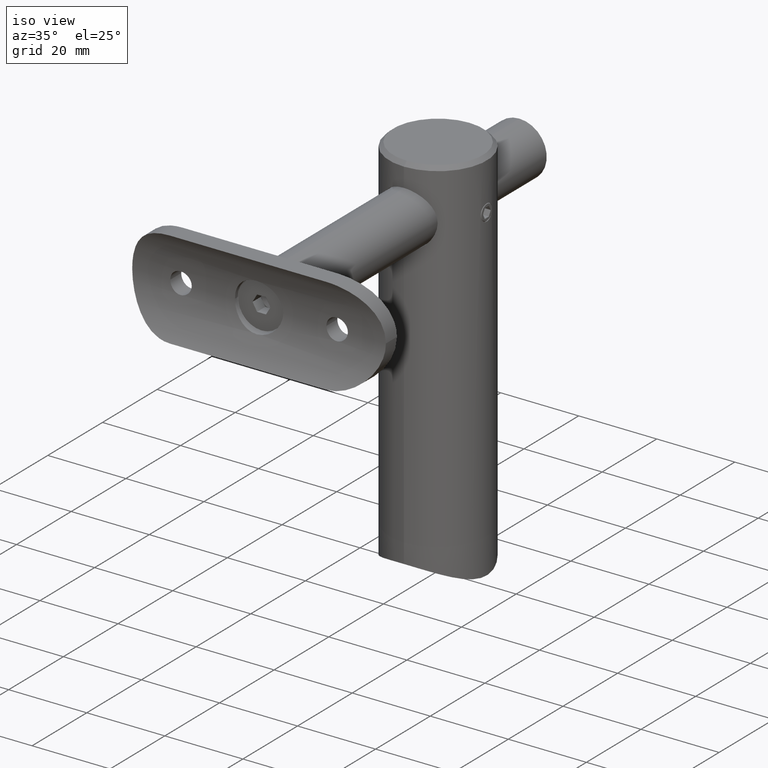
[diagram: clean part render]
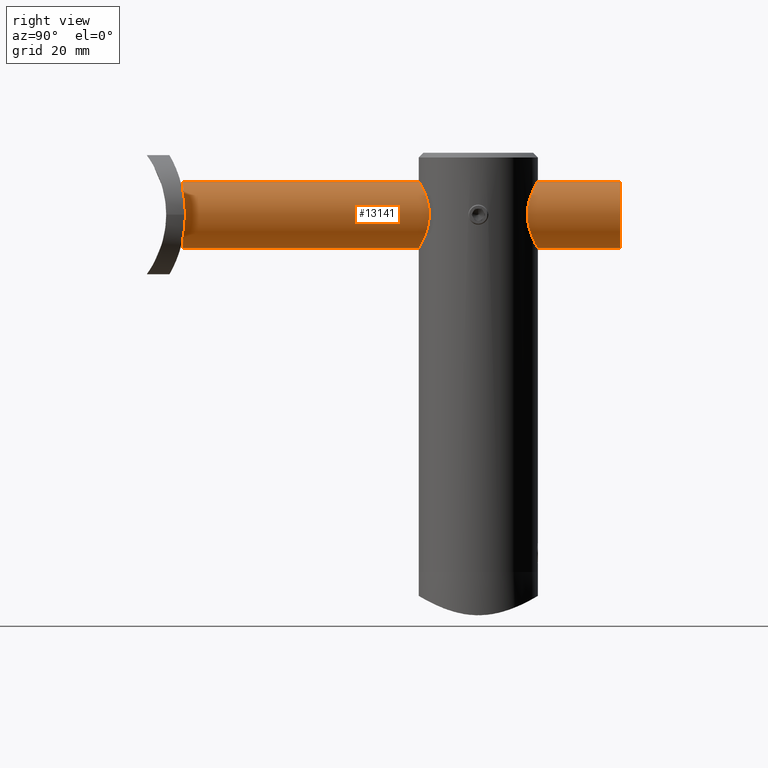
[diagram: tour spotlight — one face highlighted and labeled with its STEP entity id]
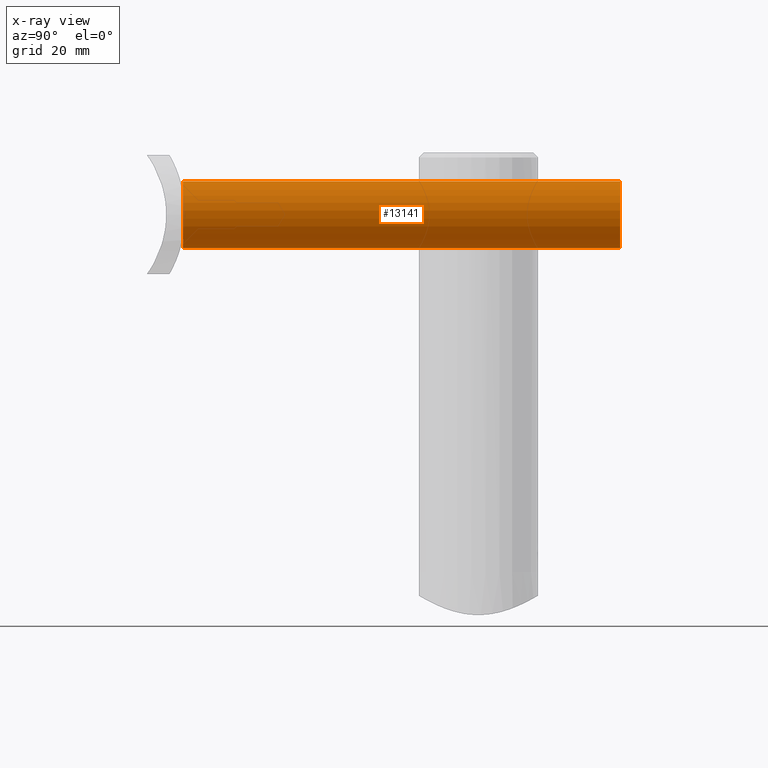
[diagram: x-ray of the same camera — body ghosted, this tour face saturated]
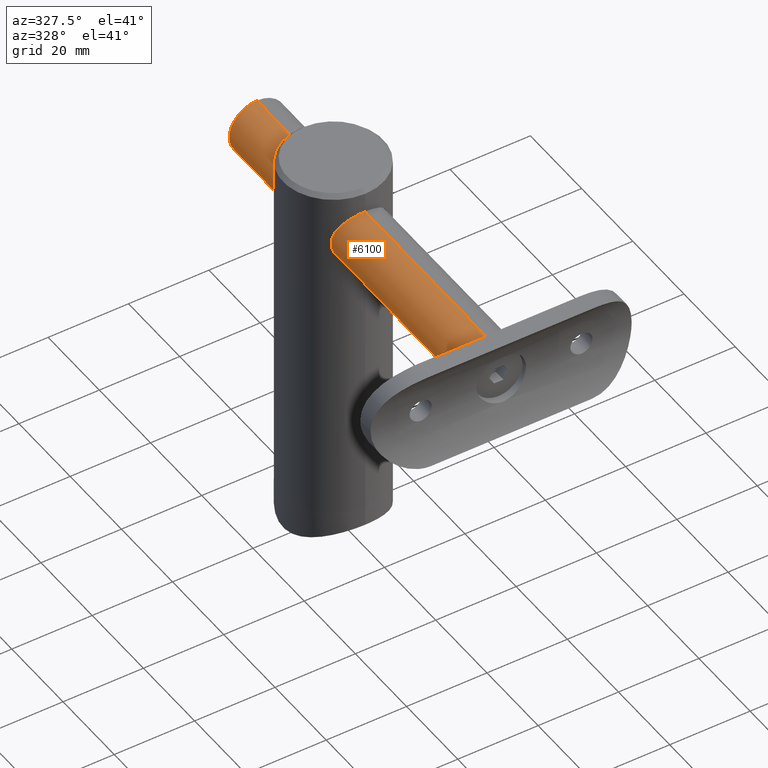
[diagram: tour spotlight — one face highlighted and labeled with its STEP entity id]
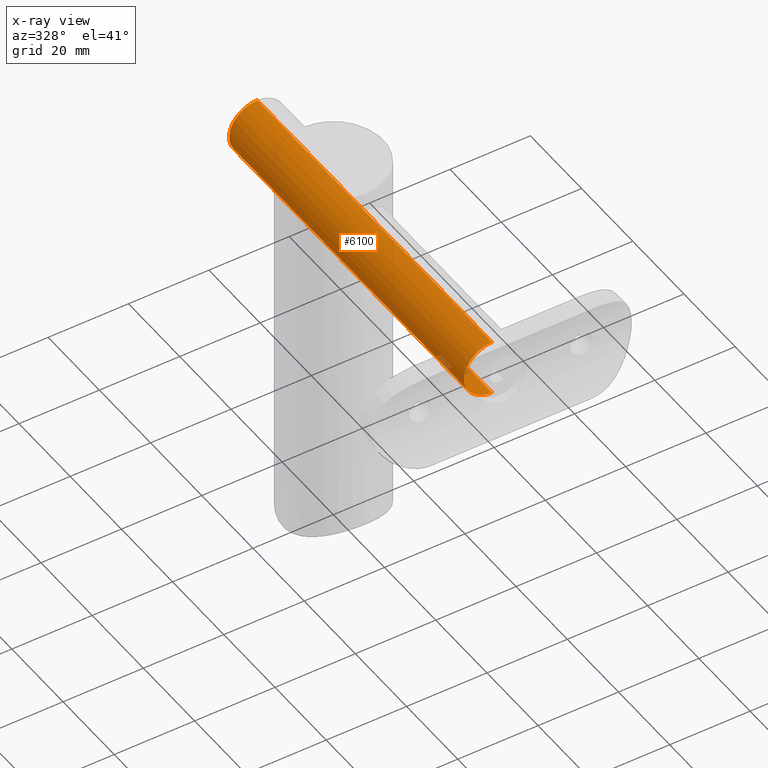
[diagram: x-ray of the same camera — body ghosted, this tour face saturated]
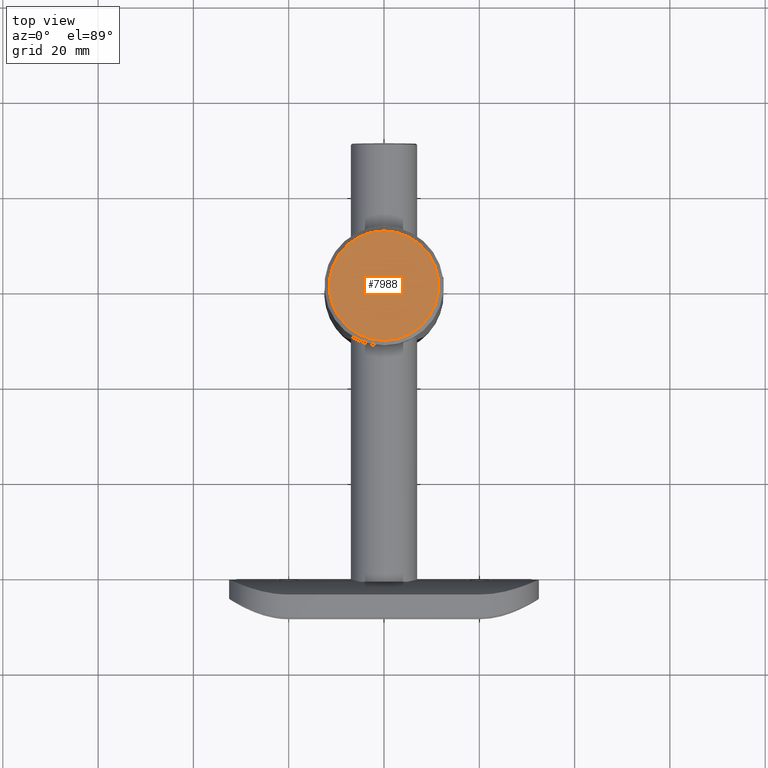
[diagram: tour spotlight — one face highlighted and labeled with its STEP entity id]
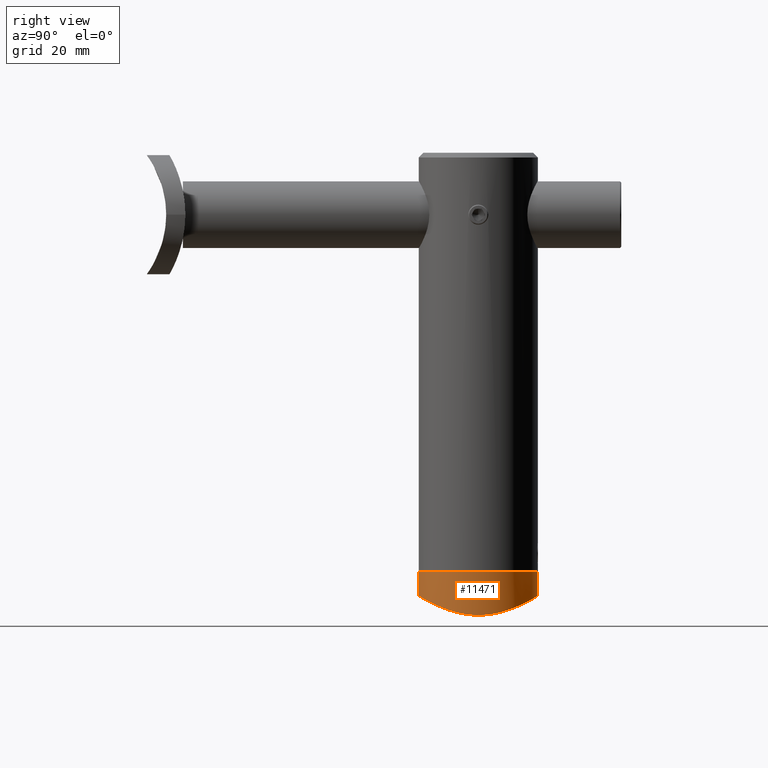
[diagram: tour spotlight — one face highlighted and labeled with its STEP entity id]
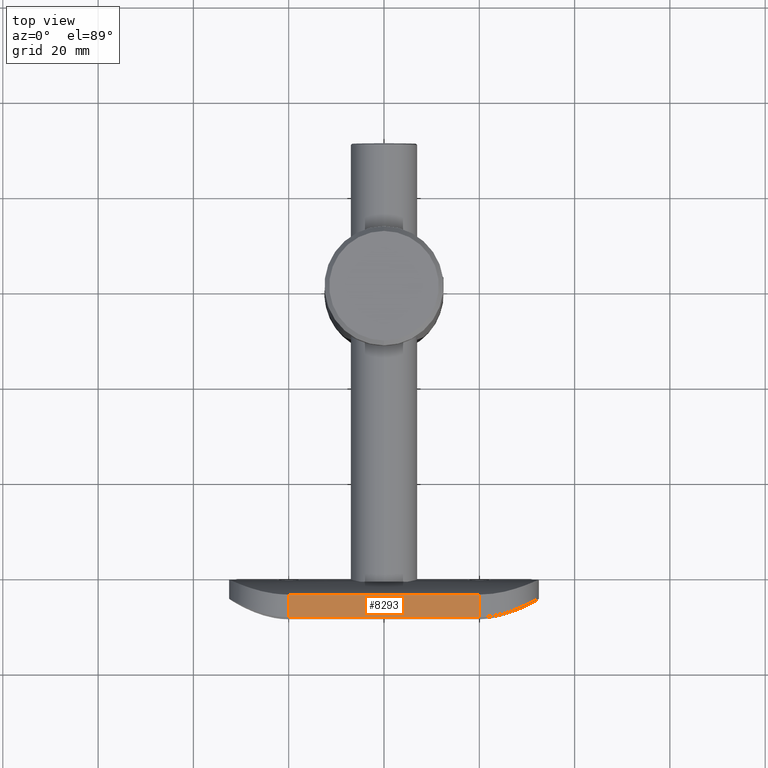
[diagram: tour spotlight — one face highlighted and labeled with its STEP entity id]
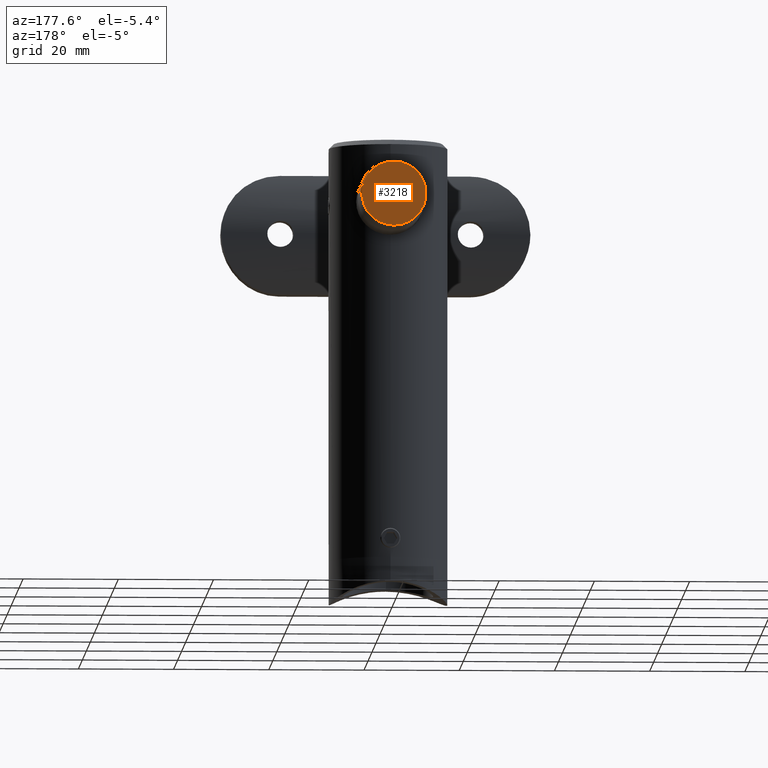
[diagram: tour spotlight — one face highlighted and labeled with its STEP entity id]
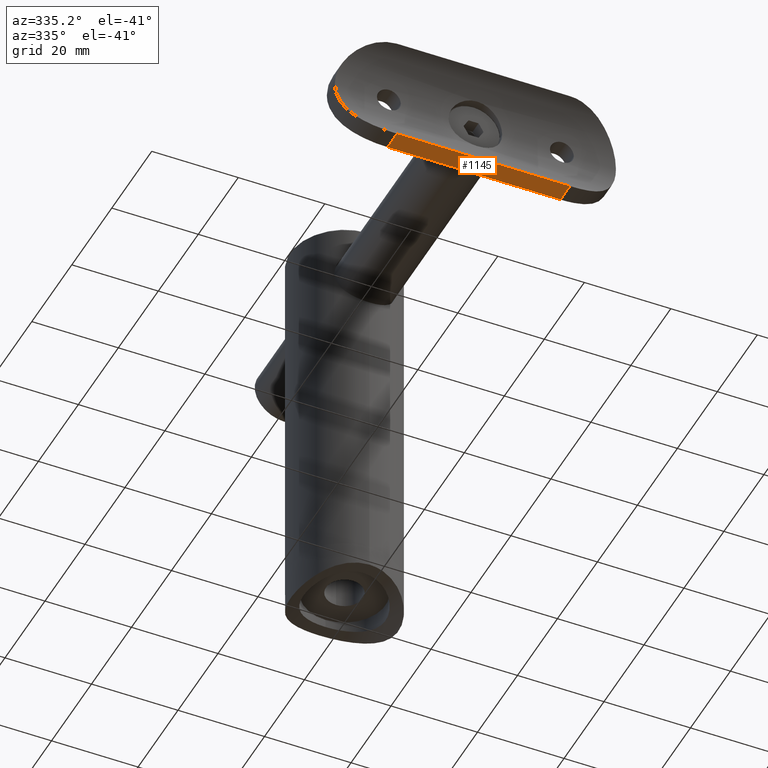
[diagram: tour spotlight — one face highlighted and labeled with its STEP entity id]
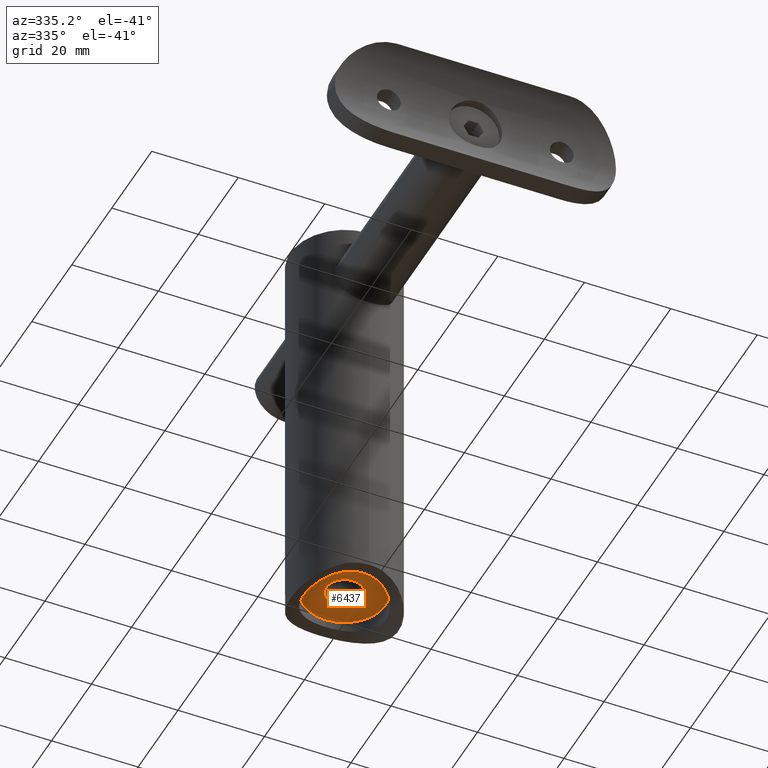
[diagram: tour spotlight — one face highlighted and labeled with its STEP entity id]
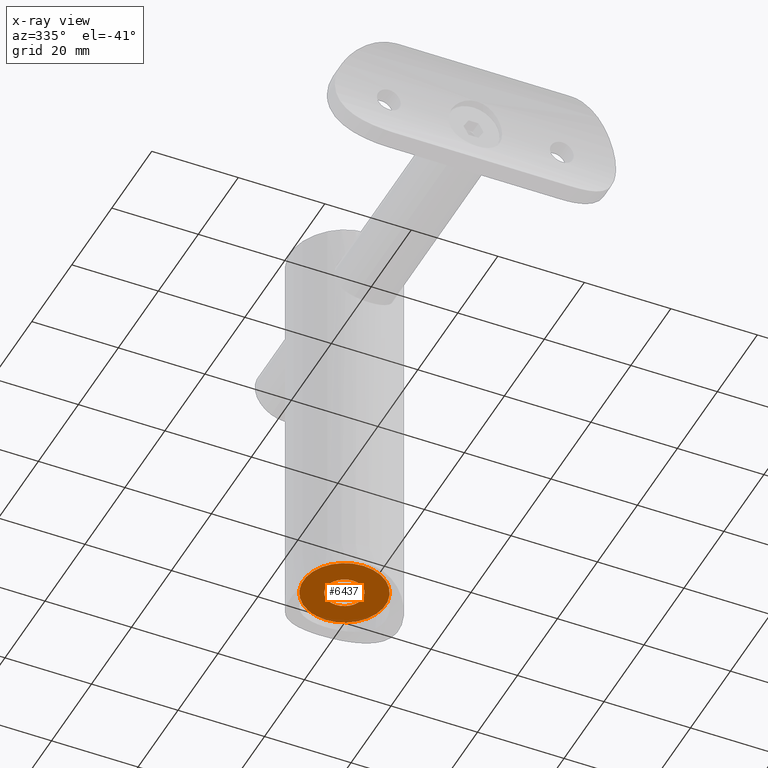
[diagram: x-ray of the same camera — body ghosted, this tour face saturated]
A machine part: a face-by-face anatomy tour. The part has 353 B-rep faces; the first image is the clean iso view, then the 8 largest visible faces are spotlighted one at a time (largest first), each with its STEP entity span.

Face 1 — right view, entity #13141. An x-ray twin of the same camera follows (body ghosted, this face saturated) — the face is partly hidden behind the body. In plain terms, the highlighted cylindrical surface (edge-blend (fillet) strip) has radius 7 mm, axis along (0, 1, -0).
Definition (entity closure, byte-faithful):
#82 = CIRCLE ( 'NONE', #6623, 7.000000000000000000 ) ;
#671 = CARTESIAN_POINT ( 'NONE',  ( 0.000000000000000000, 92.00000000000000000, 0.000000000000000000 ) ) ;
#829 = LINE ( 'NONE', #16561, #9167 ) ;
#936 = DIRECTION ( 'NONE',  ( -0.000000000000000000, -1.000000000000000000, -0.000000000000000000 ) ) ;
#2374 = CARTESIAN_POINT ( 'NONE',  ( 8.572527594031473190E-16, 92.00000000000000000, 7.000000000000000000 ) ) ;
#2653 = DIRECTION ( 'NONE',  ( -0.000000000000000000, -1.000000000000000000, -0.000000000000000000 ) ) ;
#3145 = CARTESIAN_POINT ( 'NONE',  ( 0.000000000000000000, 0.2499999999999863443, 0.000000000000000000 ) ) ;
#4127 = VECTOR ( 'NONE', #2653, 1000.000000000000000 ) ;
#4456 = AXIS2_PLACEMENT_3D ( 'NONE', #3145, #11072, #9676 ) ;
#4827 = CARTESIAN_POINT ( 'NONE',  ( 8.572527594031473190E-16, 92.00000000000000000, 7.000000000000000000 ) ) ;
#5632 = DIRECTION ( 'NONE',  ( 0.000000000000000000, 0.000000000000000000, 1.000000000000000000 ) ) ;
#5797 = VERTEX_POINT ( 'NONE', #13452 ) ;
#6597 = VERTEX_POINT ( 'NONE', #19011 ) ;
#6623 = AXIS2_PLACEMENT_3D ( 'NONE', #10310, #11914, #5632 ) ;
#7384 = LINE ( 'NONE', #2374, #4127 ) ;
#7604 = ORIENTED_EDGE ( 'NONE', *, *, #14536, .F. ) ;
#8210 = EDGE_LOOP ( 'NONE', ( #9320, #7604, #8816, #13949 ) ) ;
#8816 = ORIENTED_EDGE ( 'NONE', *, *, #13753, .T. ) ;
#8990 = CARTESIAN_POINT ( 'NONE',  ( 8.572527594031473190E-16, 0.2499999999999863443, 7.000000000000000000 ) ) ;
#8991 = EDGE_CURVE ( 'NONE', #5797, #12577, #13229, .T. ) ;
#9167 = VECTOR ( 'NONE', #20252, 1000.000000000000000 ) ;
#9320 = ORIENTED_EDGE ( 'NONE', *, *, #15158, .F. ) ;
#9676 = DIRECTION ( 'NONE',  ( 0.000000000000000000, 0.000000000000000000, 1.000000000000000000 ) ) ;
#10310 = CARTESIAN_POINT ( 'NONE',  ( 0.000000000000000000, 92.00000000000000000, 0.000000000000000000 ) ) ;
#11072 = DIRECTION ( 'NONE',  ( -0.000000000000000000, 1.000000000000000000, -0.000000000000000000 ) ) ;
#11914 = DIRECTION ( 'NONE',  ( 0.000000000000000000, 1.000000000000000000, 0.000000000000000000 ) ) ;
#11931 = FACE_OUTER_BOUND ( 'NONE', #8210, .T. ) ;
#12409 = AXIS2_PLACEMENT_3D ( 'NONE', #671, #936, #13262 ) ;
#12577 = VERTEX_POINT ( 'NONE', #8990 ) ;
#13141 = ADVANCED_FACE ( 'NONE', ( #11931 ), #14868, .T. ) ;
#13229 = CIRCLE ( 'NONE', #4456, 7.000000000000000000 ) ;
#13262 = DIRECTION ( 'NONE',  ( 0.000000000000000000, 0.000000000000000000, -1.000000000000000000 ) ) ;
#13452 = CARTESIAN_POINT ( 'NONE',  ( 0.000000000000000000, 0.2499999999999863443, -7.000000000000000000 ) ) ;
#13542 = VERTEX_POINT ( 'NONE', #4827 ) ;
#13753 = EDGE_CURVE ( 'NONE', #6597, #5797, #829, .T. ) ;
#13949 = ORIENTED_EDGE ( 'NONE', *, *, #8991, .T. ) ;
#14536 = EDGE_CURVE ( 'NONE', #6597, #13542, #82, .T. ) ;
#14868 = CYLINDRICAL_SURFACE ( 'NONE', #12409, 7.000000000000000000 ) ;
#15158 = EDGE_CURVE ( 'NONE', #13542, #12577, #7384, .T. ) ;
#16561 = CARTESIAN_POINT ( 'NONE',  ( 0.000000000000000000, 92.00000000000000000, -7.000000000000000000 ) ) ;
#19011 = CARTESIAN_POINT ( 'NONE',  ( 0.000000000000000000, 92.00000000000000000, -7.000000000000000000 ) ) ;
#20252 = DIRECTION ( 'NONE',  ( -0.000000000000000000, -1.000000000000000000, -0.000000000000000000 ) ) ;

Face 2 — auxiliary view, entity #6100. An x-ray twin of the same camera follows (body ghosted, this face saturated) — the face is partly hidden behind the body. In plain terms, the highlighted cylindrical surface (edge-blend (fillet) strip) has radius 7 mm, axis along (0, 1, -0).
Definition (entity closure, byte-faithful):
#829 = LINE ( 'NONE', #16561, #9167 ) ;
#1259 = DIRECTION ( 'NONE',  ( 0.000000000000000000, 0.000000000000000000, 1.000000000000000000 ) ) ;
#2138 = AXIS2_PLACEMENT_3D ( 'NONE', #10083, #19738, #8573 ) ;
#2374 = CARTESIAN_POINT ( 'NONE',  ( 8.572527594031473190E-16, 92.00000000000000000, 7.000000000000000000 ) ) ;
#2653 = DIRECTION ( 'NONE',  ( -0.000000000000000000, -1.000000000000000000, -0.000000000000000000 ) ) ;
#3030 = CIRCLE ( 'NONE', #2138, 7.000000000000000000 ) ;
#3034 = DIRECTION ( 'NONE',  ( -0.000000000000000000, 1.000000000000000000, -0.000000000000000000 ) ) ;
#3058 = CARTESIAN_POINT ( 'NONE',  ( 0.000000000000000000, 92.00000000000000000, 0.000000000000000000 ) ) ;
#3549 = AXIS2_PLACEMENT_3D ( 'NONE', #3058, #10777, #6040 ) ;
#4127 = VECTOR ( 'NONE', #2653, 1000.000000000000000 ) ;
#4827 = CARTESIAN_POINT ( 'NONE',  ( 8.572527594031473190E-16, 92.00000000000000000, 7.000000000000000000 ) ) ;
#4885 = CYLINDRICAL_SURFACE ( 'NONE', #3549, 7.000000000000000000 ) ;
#5797 = VERTEX_POINT ( 'NONE', #13452 ) ;
#6040 = DIRECTION ( 'NONE',  ( 0.000000000000000000, 0.000000000000000000, -1.000000000000000000 ) ) ;
#6100 = ADVANCED_FACE ( 'NONE', ( #6388 ), #4885, .T. ) ;
#6388 = FACE_OUTER_BOUND ( 'NONE', #9998, .T. ) ;
#6597 = VERTEX_POINT ( 'NONE', #19011 ) ;
#6772 = ORIENTED_EDGE ( 'NONE', *, *, #13753, .F. ) ;
#7384 = LINE ( 'NONE', #2374, #4127 ) ;
#8353 = EDGE_CURVE ( 'NONE', #12577, #5797, #13486, .T. ) ;
#8573 = DIRECTION ( 'NONE',  ( 0.000000000000000000, 0.000000000000000000, 1.000000000000000000 ) ) ;
#8990 = CARTESIAN_POINT ( 'NONE',  ( 8.572527594031473190E-16, 0.2499999999999863443, 7.000000000000000000 ) ) ;
#9167 = VECTOR ( 'NONE', #20252, 1000.000000000000000 ) ;
#9998 = EDGE_LOOP ( 'NONE', ( #13849, #12960, #11717, #6772 ) ) ;
#10083 = CARTESIAN_POINT ( 'NONE',  ( 0.000000000000000000, 92.00000000000000000, 0.000000000000000000 ) ) ;
#10777 = DIRECTION ( 'NONE',  ( -0.000000000000000000, -1.000000000000000000, -0.000000000000000000 ) ) ;
#11717 = ORIENTED_EDGE ( 'NONE', *, *, #8353, .T. ) ;
#12267 = AXIS2_PLACEMENT_3D ( 'NONE', #12490, #3034, #1259 ) ;
#12490 = CARTESIAN_POINT ( 'NONE',  ( 0.000000000000000000, 0.2499999999999863443, 0.000000000000000000 ) ) ;
#12577 = VERTEX_POINT ( 'NONE', #8990 ) ;
#12960 = ORIENTED_EDGE ( 'NONE', *, *, #15158, .T. ) ;
#13112 = EDGE_CURVE ( 'NONE', #13542, #6597, #3030, .T. ) ;
#13452 = CARTESIAN_POINT ( 'NONE',  ( 0.000000000000000000, 0.2499999999999863443, -7.000000000000000000 ) ) ;
#13486 = CIRCLE ( 'NONE', #12267, 7.000000000000000000 ) ;
#13542 = VERTEX_POINT ( 'NONE', #4827 ) ;
#13753 = EDGE_CURVE ( 'NONE', #6597, #5797, #829, .T. ) ;
#13849 = ORIENTED_EDGE ( 'NONE', *, *, #13112, .F. ) ;
#15158 = EDGE_CURVE ( 'NONE', #13542, #12577, #7384, .T. ) ;
#16561 = CARTESIAN_POINT ( 'NONE',  ( 0.000000000000000000, 92.00000000000000000, -7.000000000000000000 ) ) ;
#19011 = CARTESIAN_POINT ( 'NONE',  ( 0.000000000000000000, 92.00000000000000000, -7.000000000000000000 ) ) ;
#19738 = DIRECTION ( 'NONE',  ( 0.000000000000000000, 1.000000000000000000, 0.000000000000000000 ) ) ;
#20252 = DIRECTION ( 'NONE',  ( -0.000000000000000000, -1.000000000000000000, -0.000000000000000000 ) ) ;

Face 3 — top view, entity #7988. In plain terms, the highlighted planar face has unit normal (0, -0, 1).
Definition (entity closure, byte-faithful):
#1313 = CARTESIAN_POINT ( 'NONE',  ( 1.469576158976824736E-15, -11.50000000000001599, 88.00000000000000000 ) ) ;
#1762 = CIRCLE ( 'NONE', #12082, 11.50000000000000888 ) ;
#2329 = DIRECTION ( 'NONE',  ( 0.000000000000000000, -1.098045870766271941E-16, 1.000000000000000000 ) ) ;
#2393 = DIRECTION ( 'NONE',  ( 0.000000000000000000, -1.000000000000000000, 0.000000000000000000 ) ) ;
#3147 = AXIS2_PLACEMENT_3D ( 'NONE', #5127, #12920, #17742 ) ;
#3306 = CIRCLE ( 'NONE', #8462, 11.50000000000000888 ) ;
#3522 = EDGE_CURVE ( 'NONE', #19566, #4976, #1762, .T. ) ;
#4779 = EDGE_LOOP ( 'NONE', ( #17132, #12656 ) ) ;
#4976 = VERTEX_POINT ( 'NONE', #18847 ) ;
#5127 = CARTESIAN_POINT ( 'NONE',  ( 0.000000000000000000, -6.938893903907228378E-15, 88.00000000000000000 ) ) ;
#7988 = ADVANCED_FACE ( 'NONE', ( #9789 ), #9801, .T. ) ;
#8462 = AXIS2_PLACEMENT_3D ( 'NONE', #13222, #2329, #2393 ) ;
#9523 = DIRECTION ( 'NONE',  ( 0.000000000000000000, -1.098045870766271941E-16, 1.000000000000000000 ) ) ;
#9789 = FACE_OUTER_BOUND ( 'NONE', #4779, .T. ) ;
#9801 = PLANE ( 'NONE',  #3147 ) ;
#12082 = AXIS2_PLACEMENT_3D ( 'NONE', #17396, #9523, #19391 ) ;
#12426 = EDGE_CURVE ( 'NONE', #4976, #19566, #3306, .T. ) ;
#12656 = ORIENTED_EDGE ( 'NONE', *, *, #3522, .T. ) ;
#12920 = DIRECTION ( 'NONE',  ( 0.000000000000000000, -1.098045870766271941E-16, 1.000000000000000000 ) ) ;
#13222 = CARTESIAN_POINT ( 'NONE',  ( 0.000000000000000000, -6.938893903907228378E-15, 88.00000000000000000 ) ) ;
#17132 = ORIENTED_EDGE ( 'NONE', *, *, #12426, .T. ) ;
#17396 = CARTESIAN_POINT ( 'NONE',  ( 0.000000000000000000, -6.938893903907228378E-15, 88.00000000000000000 ) ) ;
#17742 = DIRECTION ( 'NONE',  ( 0.000000000000000000, -1.000000000000000000, -1.098045870766271941E-16 ) ) ;
#18847 = CARTESIAN_POINT ( 'NONE',  ( 0.000000000000000000, 11.50000000000000178, 88.00000000000000000 ) ) ;
#19391 = DIRECTION ( 'NONE',  ( 0.000000000000000000, -1.000000000000000000, 0.000000000000000000 ) ) ;
#19566 = VERTEX_POINT ( 'NONE', #1313 ) ;

Face 4 — right view, entity #11471. In plain terms, the highlighted cylindrical surface (partial cylindrical patch) has radius 12.5 mm, axis along (0, 0, -1).
Definition (entity closure, byte-faithful):
#20 = CARTESIAN_POINT ( 'NONE',  ( 12.49952788043968255, 0.4368485482069777714, -4.076863514619261331 ) ) ;
#234 = CARTESIAN_POINT ( 'NONE',  ( 11.19951824176104260, 5.610365273027625221, -3.195789650799768289 ) ) ;
#294 = CARTESIAN_POINT ( 'NONE',  ( 4.484770986791653868, 11.67494392594038644, -0.4761762759779024634 ) ) ;
#958 = CIRCLE ( 'NONE', #5767, 12.50000000000000000 ) ;
#1112 = LINE ( 'NONE', #14214, #20343 ) ;
#1286 = ORIENTED_EDGE ( 'NONE', *, *, #11260, .T. ) ;
#1748 = CARTESIAN_POINT ( 'NONE',  ( 0.000000000000000000, 0.000000000000000000, 0.000000000000000000 ) ) ;
#1792 = CARTESIAN_POINT ( 'NONE',  ( 12.05928981790097509, 3.315947863389200112, -3.763379523277600835 ) ) ;
#1858 = CARTESIAN_POINT ( 'NONE',  ( 6.327442067174433582, 10.81070993117193701, -0.9537559661941126254 ) ) ;
#2014 = CARTESIAN_POINT ( 'NONE',  ( 0.000000000000000000, 12.50000000000000000, 5.000000000000000000 ) ) ;
#2064 = VERTEX_POINT ( 'NONE', #8362 ) ;
#2070 = CARTESIAN_POINT ( 'NONE',  ( 1.530808498934191521E-15, -12.50000000000000000, 0.000000000000000000 ) ) ;
#2199 = CARTESIAN_POINT ( 'NONE',  ( 4.105579123586817758, -11.81380058909568476, -0.3974590877189465021 ) ) ;
#2633 = AXIS2_PLACEMENT_3D ( 'NONE', #1748, #15942, #14283 ) ;
#3500 = CARTESIAN_POINT ( 'NONE',  ( 3.314268895872203302, -12.05973822206781776, -0.2568123239795945811 ) ) ;
#3646 = CARTESIAN_POINT ( 'NONE',  ( 10.80857782698150693, -6.291928922265640267, -2.960889035143796644 ) ) ;
#3905 = CARTESIAN_POINT ( 'NONE',  ( 1.530808498934191521E-15, -12.50000000000000000, 0.000000000000000000 ) ) ;
#4663 = CARTESIAN_POINT ( 'NONE',  ( 7.658649217430773426, 9.887116871149988384, -1.428917258316854344 ) ) ;
#4806 = CARTESIAN_POINT ( 'NONE',  ( 8.275085783090288416, 9.377256695960113575, -1.678894091352529871 ) ) ;
#5221 = CARTESIAN_POINT ( 'NONE',  ( 9.926636468171464500, -7.639131853456513355, -2.460587857928715039 ) ) ;
#5294 = CARTESIAN_POINT ( 'NONE',  ( 0.8493063021244323663, -12.47821017736088756, -0.01286860730927485812 ) ) ;
#5767 = AXIS2_PLACEMENT_3D ( 'NONE', #13096, #19438, #10194 ) ;
#6131 = ORIENTED_EDGE ( 'NONE', *, *, #18754, .F. ) ;
#6273 = CARTESIAN_POINT ( 'NONE',  ( 10.81845405890102718, 6.312809980033599722, -2.960938029448109354 ) ) ;
#6407 = CARTESIAN_POINT ( 'NONE',  ( 9.907181247822171244, 7.632686742754889231, -2.455152407378314194 ) ) ;
#6465 = DIRECTION ( 'NONE',  ( -0.000000000000000000, 1.224646799147353207E-16, -1.000000000000000000 ) ) ;
#6614 = CARTESIAN_POINT ( 'NONE',  ( 9.421823641441763542, -8.253338742496664437, -2.198572594055990148 ) ) ;
#6868 = EDGE_CURVE ( 'NONE', #8634, #9893, #958, .T. ) ;
#7006 = ORIENTED_EDGE ( 'NONE', *, *, #16369, .F. ) ;
#7852 = CARTESIAN_POINT ( 'NONE',  ( 12.16283172011047320, 2.913318855141288299, -3.835786719495810182 ) ) ;
#7921 = CARTESIAN_POINT ( 'NONE',  ( 1.677193835120719623, 12.41473863385456333, -0.05058743771265820227 ) ) ;
#8020 = FACE_OUTER_BOUND ( 'NONE', #20336, .T. ) ;
#8114 = CARTESIAN_POINT ( 'NONE',  ( 0.000000000000000000, 12.50000000000000000, 1.530808498934191521E-15 ) ) ;
#8328 = CARTESIAN_POINT ( 'NONE',  ( 11.68253881569350128, -4.464708600178402875, -3.508378586956061973 ) ) ;
#8362 = CARTESIAN_POINT ( 'NONE',  ( 0.000000000000000000, 12.50000000000000000, -5.261240927112904875E-16 ) ) ;
#8634 = VERTEX_POINT ( 'NONE', #2014 ) ;
#9416 = CARTESIAN_POINT ( 'NONE',  ( 12.47743914675955779, 0.8590761027902540370, -4.060680339665353245 ) ) ;
#9449 = DIRECTION ( 'NONE',  ( -0.000000000000000000, 1.224646799147353207E-16, -1.000000000000000000 ) ) ;
#9620 = CARTESIAN_POINT ( 'NONE',  ( 9.131153934576976994, 8.545773481795480464, -2.064755425040019521 ) ) ;
#9760 = CARTESIAN_POINT ( 'NONE',  ( 10.59835307524082815, -6.639730706434157526, -2.837515640770630121 ) ) ;
#9893 = VERTEX_POINT ( 'NONE', #10618 ) ;
#10036 = CARTESIAN_POINT ( 'NONE',  ( 8.277917003856295253, -9.374850157636904768, -1.680064173656782511 ) ) ;
#10194 = DIRECTION ( 'NONE',  ( 0.000000000000000000, 1.000000000000000000, 1.387778780781445676E-16 ) ) ;
#10618 = CARTESIAN_POINT ( 'NONE',  ( 1.530808498934191521E-15, -12.50000000000000000, 4.999999999999996447 ) ) ;
#11014 = CARTESIAN_POINT ( 'NONE',  ( 12.39224670344945345, 1.690183733302201174, -3.998982945155021174 ) ) ;
#11157 = CARTESIAN_POINT ( 'NONE',  ( 3.299544761782136071, 12.06386656912338573, -0.2544362983334328976 ) ) ;
#11232 = CARTESIAN_POINT ( 'NONE',  ( 11.81299108572394552, 4.107946293886027611, -3.595584469514716996 ) ) ;
#11260 = EDGE_CURVE ( 'NONE', #9893, #16453, #1112, .T. ) ;
#11438 = CARTESIAN_POINT ( 'NONE',  ( 7.658205628427102063, -9.887548328762056471, -1.428715490893919027 ) ) ;
#11471 = ADVANCED_FACE ( 'NONE', ( #8020 ), #20094, .T. ) ;
#11511 = CARTESIAN_POINT ( 'NONE',  ( 11.19286692429163033, -5.579736034962373026, -3.194160573709634576 ) ) ;
#11574 = CARTESIAN_POINT ( 'NONE',  ( 12.50092163456458572, -0.8325225752573196525, -4.077880983653365377 ) ) ;
#12669 = CARTESIAN_POINT ( 'NONE',  ( 5.615852831644743581, 11.19741679516262600, -0.7426697937745310174 ) ) ;
#13015 = CARTESIAN_POINT ( 'NONE',  ( 12.41682490114521542, -1.662227575578483441, -4.015612738538496096 ) ) ;
#13080 = CARTESIAN_POINT ( 'NONE',  ( 6.341786811947650371, -10.80157710299960350, -0.9585494183447895722 ) ) ;
#13096 = CARTESIAN_POINT ( 'NONE',  ( 0.000000000000000000, -6.123233995736764310E-16, 4.999999999999998224 ) ) ;
#13151 = CARTESIAN_POINT ( 'NONE',  ( 11.36768113948518533, -5.214514510065638042, -3.304441698743988187 ) ) ;
#13815 = VECTOR ( 'NONE', #6465, 1000.000000000000000 ) ;
#14214 = CARTESIAN_POINT ( 'NONE',  ( 1.530808498934191521E-15, -12.50000000000000000, -1.530808498934191521E-15 ) ) ;
#14273 = B_SPLINE_CURVE_WITH_KNOTS ( 'NONE', 3,
 ( #15763, #17358, #7921, #18926, #11157, #19144, #294, #12669, #1858, #19068, #4663, #4806, #15695, #9620, #15835, #6407, #14317, #6273, #234, #17279, #11232, #1792, #7852, #18852, #11014, #9416, #20, #11574, #13015, #16045, #19352, #17637, #8328, #13151, #11511, #3646, #9760, #5221, #6614, #14736, #10036, #11438, #19494, #13080, #14665, #17767, #2199, #3500, #19275, #17830, #16256, #5294, #14525, #2070 ),
 .UNSPECIFIED., .F., .F.,
 ( 4, 2, 2, 2, 2, 2, 2, 2, 2, 2, 2, 2, 2, 2, 2, 2, 2, 2, 2, 2, 2, 2, 2, 2, 2, 2, 4 ),
 ( 0.04004282410750471810, 0.04254226347006971609, 0.04379198315135222203, 0.04504170283263472102, 0.04754114219519971901, 0.04879086187648222495, 0.05004058155776472394, 0.05129030123904722294, 0.05254002092032972887, 0.05503946028289473380, 0.05628917996417723280, 0.05753889964545973179, 0.05878861932674223079, 0.06003833900802472978, 0.06253777837058974165, 0.06378749805187224065, 0.06503721773315473964, 0.06628693741443722476, 0.06753665709571973763, 0.07003609645828472174, 0.07128581613956722074, 0.07253553582084971973, 0.07503497518341471773, 0.07628469486469721672, 0.07753441454597971572, 0.07878413422726221471, 0.08003385390854471371 ),
 .UNSPECIFIED. ) ;
#14283 = DIRECTION ( 'NONE',  ( 0.000000000000000000, 1.000000000000000000, 1.224646799147353207E-16 ) ) ;
#14317 = CARTESIAN_POINT ( 'NONE',  ( 10.14840342747128865, 7.308901243718507246, -2.585073453788892195 ) ) ;
#14525 = CARTESIAN_POINT ( 'NONE',  ( 0.4231827426424521477, -12.50000000000000178, 3.049318610115447941E-17 ) ) ;
#14558 = LINE ( 'NONE', #8114, #13815 ) ;
#14665 = CARTESIAN_POINT ( 'NONE',  ( 5.634036949567876817, -11.18857916297122657, -0.7475340222135680168 ) ) ;
#14736 = CARTESIAN_POINT ( 'NONE',  ( 8.576233453199916923, -9.102626546136086461, -1.809681003019513623 ) ) ;
#15695 = CARTESIAN_POINT ( 'NONE',  ( 8.569357823279592168, 9.109024265841888734, -1.806659297143442533 ) ) ;
#15763 = CARTESIAN_POINT ( 'NONE',  ( 0.000000000000000000, 12.50000000000000000, -5.261240927112904875E-16 ) ) ;
#15835 = CARTESIAN_POINT ( 'NONE',  ( 9.398677270982503273, 8.250758313400195831, -2.195094919896832586 ) ) ;
#15942 = DIRECTION ( 'NONE',  ( -0.000000000000000000, 1.224646799147353207E-16, -1.000000000000000000 ) ) ;
#16045 = CARTESIAN_POINT ( 'NONE',  ( 12.16984790407604322, -2.883996753870297969, -3.840709158031506476 ) ) ;
#16256 = CARTESIAN_POINT ( 'NONE',  ( 1.686513140915326892, -12.39284970661473828, -0.06302927873795291513 ) ) ;
#16369 = EDGE_CURVE ( 'NONE', #8634, #2064, #14558, .T. ) ;
#16453 = VERTEX_POINT ( 'NONE', #3905 ) ;
#17279 = CARTESIAN_POINT ( 'NONE',  ( 11.67210911516328586, 4.491739155361240243, -3.501495300727552884 ) ) ;
#17358 = CARTESIAN_POINT ( 'NONE',  ( 0.8474616539393307058, 12.50000000000000000, -5.374424050328533679E-16 ) ) ;
#17637 = CARTESIAN_POINT ( 'NONE',  ( 11.82258794161552373, -4.080128214362262362, -3.602040162122799316 ) ) ;
#17767 = CARTESIAN_POINT ( 'NONE',  ( 4.497906677117311069, -11.66996163373024764, -0.4789896541132562247 ) ) ;
#17830 = CARTESIAN_POINT ( 'NONE',  ( 2.099149467039291839, -12.32948117877257133, -0.1002009966568829374 ) ) ;
#18754 = EDGE_CURVE ( 'NONE', #2064, #16453, #14273, .T. ) ;
#18852 = CARTESIAN_POINT ( 'NONE',  ( 12.32914928014637823, 2.100947460388598031, -3.953479877655619479 ) ) ;
#18926 = CARTESIAN_POINT ( 'NONE',  ( 2.897069353050997886, 12.16672379034243612, -0.1948899815732027530 ) ) ;
#19068 = CARTESIAN_POINT ( 'NONE',  ( 7.335528771759538991, 10.12938846727852393, -1.306364138595596858 ) ) ;
#19144 = CARTESIAN_POINT ( 'NONE',  ( 4.096177303198103026, 11.81715717646936170, -0.3955541790620945020 ) ) ;
#19275 = CARTESIAN_POINT ( 'NONE',  ( 2.913028033381143356, -12.16292737376220501, -0.1970903410221248320 ) ) ;
#19352 = CARTESIAN_POINT ( 'NONE',  ( 12.06641939663192176, -3.289765162964158662, -3.768324835594353939 ) ) ;
#19438 = DIRECTION ( 'NONE',  ( -0.000000000000000000, 1.224646799147353207E-16, -1.000000000000000000 ) ) ;
#19494 = CARTESIAN_POINT ( 'NONE',  ( 7.337423735946516423, -10.12782281091194569, -1.307140519180895577 ) ) ;
#19522 = ORIENTED_EDGE ( 'NONE', *, *, #6868, .T. ) ;
#20094 = CYLINDRICAL_SURFACE ( 'NONE', #2633, 12.50000000000000000 ) ;
#20336 = EDGE_LOOP ( 'NONE', ( #19522, #1286, #6131, #7006 ) ) ;
#20343 = VECTOR ( 'NONE', #9449, 1000.000000000000000 ) ;

Face 5 — top view, entity #8293. In plain terms, the highlighted planar face has unit normal (-0, -0, -1).
Definition (entity closure, byte-faithful):
#689 = VECTOR ( 'NONE', #10693, 1000.000000000000000 ) ;
#720 = EDGE_CURVE ( 'NONE', #12168, #11667, #12370, .T. ) ;
#1158 = CARTESIAN_POINT ( 'NONE',  ( -12.49999999999999645, 8.077208171562682892, -20.00000000000000355 ) ) ;
#1194 = CARTESIAN_POINT ( 'NONE',  ( -12.49999999999999645, 3.318729470161013495, 32.50000000000004974 ) ) ;
#1419 = VERTEX_POINT ( 'NONE', #2159 ) ;
#1863 = CARTESIAN_POINT ( 'NONE',  ( -12.49999999999999645, 3.318729470161013495, 20.00000000000000000 ) ) ;
#2159 = CARTESIAN_POINT ( 'NONE',  ( -12.49999999999999645, 8.077208171562682892, -20.00000000000000355 ) ) ;
#2839 = ORIENTED_EDGE ( 'NONE', *, *, #8359, .F. ) ;
#3380 = CARTESIAN_POINT ( 'NONE',  ( -12.49999999999999645, 3.318729470161013495, -20.00000000000000355 ) ) ;
#3422 = AXIS2_PLACEMENT_3D ( 'NONE', #9362, #7542, #4614 ) ;
#4306 = VERTEX_POINT ( 'NONE', #3380 ) ;
#4614 = DIRECTION ( 'NONE',  ( 0.000000000000000000, 0.000000000000000000, -1.000000000000000000 ) ) ;
#5392 = CARTESIAN_POINT ( 'NONE',  ( -12.49999999999999645, 8.077208171562682892, 20.00000000000000000 ) ) ;
#5403 = CARTESIAN_POINT ( 'NONE',  ( -12.49999999999999645, 8.077208171562682892, 32.50000000000004974 ) ) ;
#7542 = DIRECTION ( 'NONE',  ( 1.000000000000000000, 0.000000000000000000, 0.000000000000000000 ) ) ;
#7768 = DIRECTION ( 'NONE',  ( 0.000000000000000000, -1.000000000000000000, 0.000000000000000000 ) ) ;
#8293 = ADVANCED_FACE ( 'NONE', ( #19421 ), #10760, .F. ) ;
#8359 = EDGE_CURVE ( 'NONE', #12168, #4306, #8556, .T. ) ;
#8556 = LINE ( 'NONE', #1194, #689 ) ;
#8985 = EDGE_LOOP ( 'NONE', ( #18077, #13018, #2839, #19270 ) ) ;
#9362 = CARTESIAN_POINT ( 'NONE',  ( -12.49999999999999645, 8.077208171562682892, 32.50000000000004974 ) ) ;
#10693 = DIRECTION ( 'NONE',  ( 0.000000000000000000, 0.000000000000000000, -1.000000000000000000 ) ) ;
#10760 = PLANE ( 'NONE',  #3422 ) ;
#10876 = VECTOR ( 'NONE', #7768, 1000.000000000000000 ) ;
#11667 = VERTEX_POINT ( 'NONE', #5392 ) ;
#11880 = VECTOR ( 'NONE', #14088, 1000.000000000000000 ) ;
#12168 = VERTEX_POINT ( 'NONE', #1863 ) ;
#12370 = LINE ( 'NONE', #18903, #11880 ) ;
#12803 = VECTOR ( 'NONE', #13123, 1000.000000000000000 ) ;
#13018 = ORIENTED_EDGE ( 'NONE', *, *, #14697, .T. ) ;
#13123 = DIRECTION ( 'NONE',  ( 0.000000000000000000, 0.000000000000000000, -1.000000000000000000 ) ) ;
#14088 = DIRECTION ( 'NONE',  ( -0.000000000000000000, 1.000000000000000000, -0.000000000000000000 ) ) ;
#14697 = EDGE_CURVE ( 'NONE', #1419, #4306, #16089, .T. ) ;
#16005 = LINE ( 'NONE', #5403, #12803 ) ;
#16089 = LINE ( 'NONE', #1158, #10876 ) ;
#17996 = EDGE_CURVE ( 'NONE', #11667, #1419, #16005, .T. ) ;
#18077 = ORIENTED_EDGE ( 'NONE', *, *, #17996, .T. ) ;
#18903 = CARTESIAN_POINT ( 'NONE',  ( -12.49999999999999645, 8.077208171562682892, 20.00000000000000000 ) ) ;
#19270 = ORIENTED_EDGE ( 'NONE', *, *, #720, .T. ) ;
#19421 = FACE_OUTER_BOUND ( 'NONE', #8985, .T. ) ;

Face 6 — auxiliary view, entity #3218. In plain terms, the highlighted planar face has unit normal (0, -1, 0).
Definition (entity closure, byte-faithful):
#2443 = EDGE_LOOP ( 'NONE', ( #5056, #20029 ) ) ;
#3218 = ADVANCED_FACE ( 'NONE', ( #9121 ), #13611, .F. ) ;
#3344 = EDGE_CURVE ( 'NONE', #14167, #18054, #7435, .T. ) ;
#4180 = DIRECTION ( 'NONE',  ( 0.000000000000000000, 1.000000000000000000, 0.000000000000000000 ) ) ;
#4244 = DIRECTION ( 'NONE',  ( 0.000000000000000000, 0.000000000000000000, 1.000000000000000000 ) ) ;
#5056 = ORIENTED_EDGE ( 'NONE', *, *, #20120, .T. ) ;
#5567 = DIRECTION ( 'NONE',  ( -0.000000000000000000, -1.000000000000000000, -0.000000000000000000 ) ) ;
#5614 = CARTESIAN_POINT ( 'NONE',  ( 0.000000000000000000, 0.000000000000000000, 0.000000000000000000 ) ) ;
#7435 = CIRCLE ( 'NONE', #11019, 6.750000000000006217 ) ;
#9121 = FACE_OUTER_BOUND ( 'NONE', #2443, .T. ) ;
#10226 = DIRECTION ( 'NONE',  ( 0.000000000000000000, -0.000000000000000000, 1.000000000000000000 ) ) ;
#10450 = CARTESIAN_POINT ( 'NONE',  ( 8.419446744138058199E-16, 0.000000000000000000, -6.750000000000006217 ) ) ;
#10768 = DIRECTION ( 'NONE',  ( -0.000000000000000000, -1.000000000000000000, -0.000000000000000000 ) ) ;
#11019 = AXIS2_PLACEMENT_3D ( 'NONE', #12434, #10768, #4244 ) ;
#12434 = CARTESIAN_POINT ( 'NONE',  ( 0.000000000000000000, 0.000000000000000000, 0.000000000000000000 ) ) ;
#13350 = DIRECTION ( 'NONE',  ( 0.000000000000000000, 0.000000000000000000, 1.000000000000000000 ) ) ;
#13611 = PLANE ( 'NONE',  #15636 ) ;
#14167 = VERTEX_POINT ( 'NONE', #10450 ) ;
#15001 = CARTESIAN_POINT ( 'NONE',  ( 0.000000000000000000, 0.000000000000000000, 0.000000000000000000 ) ) ;
#15636 = AXIS2_PLACEMENT_3D ( 'NONE', #5614, #4180, #10226 ) ;
#16974 = AXIS2_PLACEMENT_3D ( 'NONE', #15001, #5567, #13350 ) ;
#18054 = VERTEX_POINT ( 'NONE', #19603 ) ;
#19428 = CIRCLE ( 'NONE', #16974, 6.750000000000006217 ) ;
#19603 = CARTESIAN_POINT ( 'NONE',  ( 0.000000000000000000, 0.000000000000000000, 6.750000000000006217 ) ) ;
#20029 = ORIENTED_EDGE ( 'NONE', *, *, #3344, .T. ) ;
#20120 = EDGE_CURVE ( 'NONE', #18054, #14167, #19428, .T. ) ;

Face 7 — auxiliary view, entity #1145. In plain terms, the highlighted planar face has unit normal (0, 0, 1).
Definition (entity closure, byte-faithful):
#429 = CARTESIAN_POINT ( 'NONE',  ( 12.50000000000000355, 3.318729470161013495, 20.00000000000000000 ) ) ;
#1145 = ADVANCED_FACE ( 'NONE', ( #5694 ), #12349, .F. ) ;
#1293 = CARTESIAN_POINT ( 'NONE',  ( 12.50000000000000355, 3.318729470161013495, -20.00000000000000355 ) ) ;
#2252 = DIRECTION ( 'NONE',  ( 0.000000000000000000, 0.000000000000000000, -1.000000000000000000 ) ) ;
#2383 = CARTESIAN_POINT ( 'NONE',  ( 12.49999999999999645, 8.077208171562682892, 32.50000000000000000 ) ) ;
#2472 = LINE ( 'NONE', #1293, #4938 ) ;
#3708 = VERTEX_POINT ( 'NONE', #6527 ) ;
#4413 = CARTESIAN_POINT ( 'NONE',  ( 12.49999999999999645, 3.318729470161013495, 32.50000000000000000 ) ) ;
#4938 = VECTOR ( 'NONE', #12110, 1000.000000000000000 ) ;
#5694 = FACE_OUTER_BOUND ( 'NONE', #10949, .T. ) ;
#6018 = DIRECTION ( 'NONE',  ( -1.000000000000000000, 0.000000000000000000, 0.000000000000000000 ) ) ;
#6415 = ORIENTED_EDGE ( 'NONE', *, *, #10714, .F. ) ;
#6527 = CARTESIAN_POINT ( 'NONE',  ( 12.50000000000000355, 8.077208171562682892, -20.00000000000000355 ) ) ;
#6859 = CARTESIAN_POINT ( 'NONE',  ( 12.50000000000000355, 3.318729470161013495, 20.00000000000000000 ) ) ;
#9330 = CARTESIAN_POINT ( 'NONE',  ( 12.50000000000000355, 8.077208171562682892, 20.00000000000000000 ) ) ;
#9733 = VECTOR ( 'NONE', #18217, 1000.000000000000000 ) ;
#10060 = DIRECTION ( 'NONE',  ( -0.000000000000000000, -1.000000000000000000, -0.000000000000000000 ) ) ;
#10101 = LINE ( 'NONE', #6859, #10336 ) ;
#10336 = VECTOR ( 'NONE', #10060, 1000.000000000000000 ) ;
#10458 = VERTEX_POINT ( 'NONE', #9330 ) ;
#10714 = EDGE_CURVE ( 'NONE', #10458, #3708, #14673, .T. ) ;
#10855 = EDGE_CURVE ( 'NONE', #18863, #16578, #15659, .T. ) ;
#10949 = EDGE_LOOP ( 'NONE', ( #17345, #18068, #6415, #15944 ) ) ;
#12110 = DIRECTION ( 'NONE',  ( 0.000000000000000000, 1.000000000000000000, 0.000000000000000000 ) ) ;
#12349 = PLANE ( 'NONE',  #12871 ) ;
#12871 = AXIS2_PLACEMENT_3D ( 'NONE', #4413, #6018, #18662 ) ;
#14673 = LINE ( 'NONE', #2383, #14928 ) ;
#14928 = VECTOR ( 'NONE', #2252, 1000.000000000000000 ) ;
#15659 = LINE ( 'NONE', #20018, #9733 ) ;
#15944 = ORIENTED_EDGE ( 'NONE', *, *, #17041, .T. ) ;
#16154 = EDGE_CURVE ( 'NONE', #16578, #3708, #2472, .T. ) ;
#16578 = VERTEX_POINT ( 'NONE', #16855 ) ;
#16855 = CARTESIAN_POINT ( 'NONE',  ( 12.50000000000000355, 3.318729470161013495, -20.00000000000000355 ) ) ;
#17041 = EDGE_CURVE ( 'NONE', #10458, #18863, #10101, .T. ) ;
#17345 = ORIENTED_EDGE ( 'NONE', *, *, #10855, .T. ) ;
#18068 = ORIENTED_EDGE ( 'NONE', *, *, #16154, .T. ) ;
#18217 = DIRECTION ( 'NONE',  ( 0.000000000000000000, 0.000000000000000000, -1.000000000000000000 ) ) ;
#18662 = DIRECTION ( 'NONE',  ( 0.000000000000000000, 0.000000000000000000, 1.000000000000000000 ) ) ;
#18863 = VERTEX_POINT ( 'NONE', #429 ) ;
#20018 = CARTESIAN_POINT ( 'NONE',  ( 12.49999999999999645, 3.318729470161013495, 32.50000000000000000 ) ) ;

Face 8 — auxiliary view, entity #6437. An x-ray twin of the same camera follows (body ghosted, this face saturated) — the face is partly hidden behind the body. In plain terms, the highlighted planar face has unit normal (0, 0, -1).
Definition (entity closure, byte-faithful):
#72 = CARTESIAN_POINT ( 'NONE',  ( 1.163414459189985682E-15, -9.500000000000001776, 1.999999999999997335 ) ) ;
#578 = EDGE_CURVE ( 'NONE', #7152, #6643, #7202, .T. ) ;
#776 = EDGE_LOOP ( 'NONE', ( #16858, #8855 ) ) ;
#949 = DIRECTION ( 'NONE',  ( 0.000000000000000000, 1.000000000000000000, 1.369518533665900065E-16 ) ) ;
#1185 = AXIS2_PLACEMENT_3D ( 'NONE', #15054, #15200, #949 ) ;
#1351 = DIRECTION ( 'NONE',  ( 0.000000000000000000, 1.000000000000000000, 1.020425574104004122E-16 ) ) ;
#1544 = CARTESIAN_POINT ( 'NONE',  ( 0.000000000000000000, -2.449293598294705921E-16, 1.999999999999999556 ) ) ;
#2679 = CARTESIAN_POINT ( 'NONE',  ( 0.000000000000000000, 4.250000000000000000, 2.000000000000000000 ) ) ;
#2794 = CARTESIAN_POINT ( 'NONE',  ( 0.000000000000000000, -2.449293598294705921E-16, 1.999999999999999556 ) ) ;
#3394 = AXIS2_PLACEMENT_3D ( 'NONE', #15182, #13591, #5807 ) ;
#4228 = PLANE ( 'NONE',  #3394 ) ;
#4848 = AXIS2_PLACEMENT_3D ( 'NONE', #15822, #6394, #9606 ) ;
#5452 = EDGE_LOOP ( 'NONE', ( #14771, #10484 ) ) ;
#5807 = DIRECTION ( 'NONE',  ( 0.000000000000000000, 1.000000000000000000, 1.224646799147353207E-16 ) ) ;
#6394 = DIRECTION ( 'NONE',  ( -0.000000000000000000, 1.224646799147353207E-16, -1.000000000000000000 ) ) ;
#6437 = ADVANCED_FACE ( 'NONE', ( #19188, #19458 ), #4228, .T. ) ;
#6643 = VERTEX_POINT ( 'NONE', #18939 ) ;
#7152 = VERTEX_POINT ( 'NONE', #2679 ) ;
#7202 = CIRCLE ( 'NONE', #7592, 4.250000000000000000 ) ;
#7532 = AXIS2_PLACEMENT_3D ( 'NONE', #1544, #14153, #12848 ) ;
#7592 = AXIS2_PLACEMENT_3D ( 'NONE', #2794, #15407, #1351 ) ;
#8855 = ORIENTED_EDGE ( 'NONE', *, *, #10974, .F. ) ;
#8988 = EDGE_CURVE ( 'NONE', #17077, #12901, #13248, .T. ) ;
#9606 = DIRECTION ( 'NONE',  ( 0.000000000000000000, 1.000000000000000000, 1.369518533665900065E-16 ) ) ;
#10484 = ORIENTED_EDGE ( 'NONE', *, *, #10782, .T. ) ;
#10727 = CIRCLE ( 'NONE', #1185, 9.500000000000001776 ) ;
#10782 = EDGE_CURVE ( 'NONE', #12901, #17077, #10727, .T. ) ;
#10974 = EDGE_CURVE ( 'NONE', #6643, #7152, #18363, .T. ) ;
#12848 = DIRECTION ( 'NONE',  ( 0.000000000000000000, 1.000000000000000000, 1.020425574104004122E-16 ) ) ;
#12899 = CARTESIAN_POINT ( 'NONE',  ( 0.000000000000000000, 9.500000000000001776, 2.000000000000000000 ) ) ;
#12901 = VERTEX_POINT ( 'NONE', #72 ) ;
#13248 = CIRCLE ( 'NONE', #4848, 9.500000000000001776 ) ;
#13591 = DIRECTION ( 'NONE',  ( -0.000000000000000000, 1.224646799147353207E-16, -1.000000000000000000 ) ) ;
#14153 = DIRECTION ( 'NONE',  ( -0.000000000000000000, 1.224646799147353207E-16, -1.000000000000000000 ) ) ;
#14771 = ORIENTED_EDGE ( 'NONE', *, *, #8988, .T. ) ;
#15054 = CARTESIAN_POINT ( 'NONE',  ( 0.000000000000000000, -2.449293598294704935E-16, 1.999999999999998668 ) ) ;
#15182 = CARTESIAN_POINT ( 'NONE',  ( 0.000000000000000000, 4.250000000000000000, 1.999999999999999556 ) ) ;
#15200 = DIRECTION ( 'NONE',  ( -0.000000000000000000, 1.224646799147353207E-16, -1.000000000000000000 ) ) ;
#15407 = DIRECTION ( 'NONE',  ( -0.000000000000000000, 1.224646799147353207E-16, -1.000000000000000000 ) ) ;
#15822 = CARTESIAN_POINT ( 'NONE',  ( 0.000000000000000000, -2.449293598294704935E-16, 1.999999999999998668 ) ) ;
#16858 = ORIENTED_EDGE ( 'NONE', *, *, #578, .F. ) ;
#17077 = VERTEX_POINT ( 'NONE', #12899 ) ;
#18363 = CIRCLE ( 'NONE', #7532, 4.250000000000000000 ) ;
#18939 = CARTESIAN_POINT ( 'NONE',  ( 5.204748896376251685E-16, -4.250000000000000000, 1.999999999999999112 ) ) ;
#19188 = FACE_OUTER_BOUND ( 'NONE', #5452, .T. ) ;
#19458 = FACE_BOUND ( 'NONE', #776, .T. ) ;